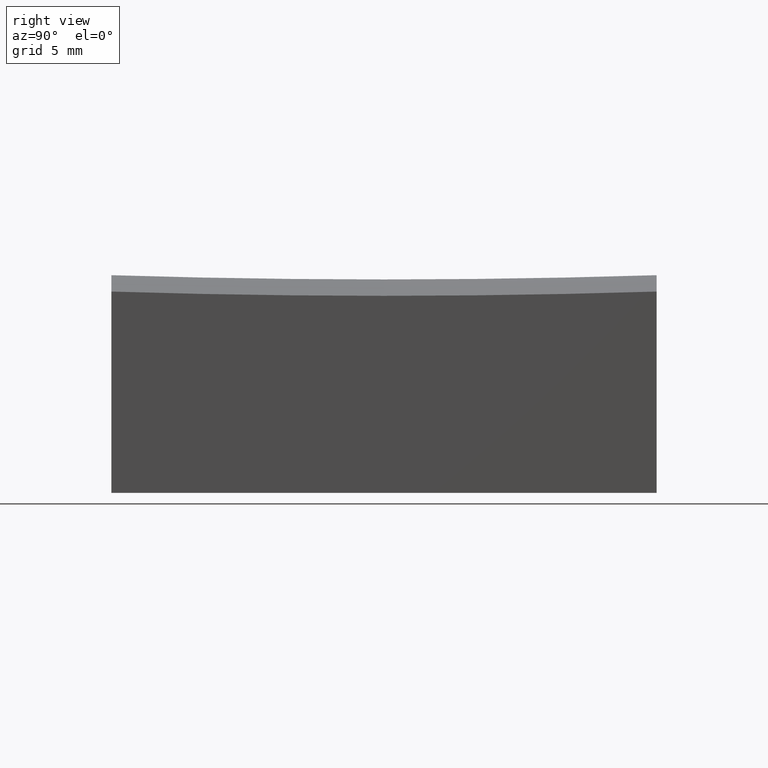
[diagram: clean part render]
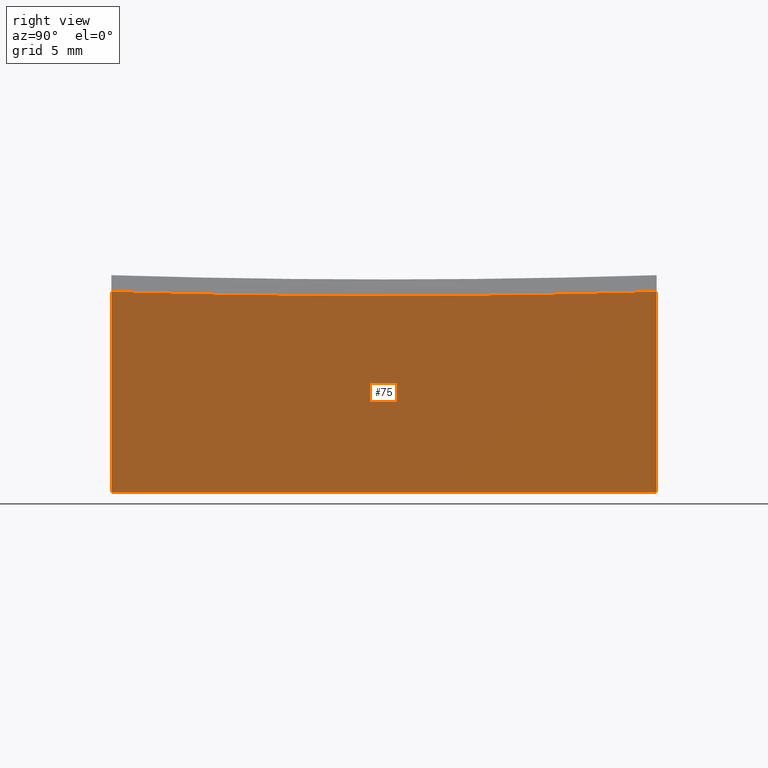
[diagram: same view with one face highlighted and labeled with its STEP entity id]
A machine part, right view. The second image highlights one B-rep face of the part: STEP entity #75.
In plain terms, the highlighted planar face has unit normal (-1, 0, 0).
Its self-contained STEP definition (entity closure, byte-faithful):
#2 = CARTESIAN_POINT ( 'NONE',  ( 10.00000000000000178, 12.50000000000000000, 10.00000000000000000 ) ) ;
#3 = ORIENTED_EDGE ( 'NONE', *, *, #108, .T. ) ;
#7 = AXIS2_PLACEMENT_3D ( 'NONE', #65, #240, #44 ) ;
#12 = CARTESIAN_POINT ( 'NONE',  ( 10.00000000000000178, 12.50000000000000000, -10.00000000000000000 ) ) ;
#17 = FACE_OUTER_BOUND ( 'NONE', #113, .T. ) ;
#18 = DIRECTION ( 'NONE',  ( 0.000000000000000000, 0.000000000000000000, 1.000000000000000000 ) ) ;
#24 = CARTESIAN_POINT ( 'NONE',  ( 10.00000000000000178, 0.000000000000000000, -0.9687487792014171095 ) ) ;
#25 = AXIS2_PLACEMENT_3D ( 'NONE', #235, #36, #66 ) ;
#29 = VECTOR ( 'NONE', #84, 1000.000000000000000 ) ;
#36 = DIRECTION ( 'NONE',  ( -1.000000000000000000, 0.000000000000000000, 0.000000000000000000 ) ) ;
#44 = DIRECTION ( 'NONE',  ( 0.000000000000000000, 0.000000000000000000, 1.000000000000000000 ) ) ;
#48 = VERTEX_POINT ( 'NONE', #196 ) ;
#55 = DIRECTION ( 'NONE',  ( -1.000000000000000000, 0.000000000000000000, 0.000000000000000000 ) ) ;
#60 = LINE ( 'NONE', #2, #29 ) ;
#62 = DIRECTION ( 'NONE',  ( 0.000000000000000000, 1.000000000000000000, 0.000000000000000000 ) ) ;
#65 = CARTESIAN_POINT ( 'NONE',  ( 10.00000000000000178, 0.000000000000000000, 399.0000000000000000 ) ) ;
#66 = DIRECTION ( 'NONE',  ( 0.000000000000000000, 0.000000000000000000, 1.000000000000000000 ) ) ;
#72 = CIRCLE ( 'NONE', #7, 399.9687487792014053 ) ;
#74 = EDGE_CURVE ( 'NONE', #48, #194, #72, .T. ) ;
#75 = ADVANCED_FACE ( 'NONE', ( #17 ), #261, .F. ) ;
#77 = CARTESIAN_POINT ( 'NONE',  ( 10.00000000000000178, 0.000000000000000000, 399.0000000000000000 ) ) ;
#82 = CARTESIAN_POINT ( 'NONE',  ( 10.00000000000000178, -12.50000000000000000, -0.7733733004237630659 ) ) ;
#83 = DIRECTION ( 'NONE',  ( -0.000000000000000000, -0.000000000000000000, -1.000000000000000000 ) ) ;
#84 = DIRECTION ( 'NONE',  ( -0.000000000000000000, -0.000000000000000000, -1.000000000000000000 ) ) ;
#89 = ORIENTED_EDGE ( 'NONE', *, *, #267, .T. ) ;
#95 = AXIS2_PLACEMENT_3D ( 'NONE', #77, #55, #18 ) ;
#98 = EDGE_CURVE ( 'NONE', #48, #243, #60, .T. ) ;
#101 = ORIENTED_EDGE ( 'NONE', *, *, #74, .T. ) ;
#104 = CARTESIAN_POINT ( 'NONE',  ( 10.00000000000000178, -12.50000000000000000, -10.00000000000000000 ) ) ;
#108 = EDGE_CURVE ( 'NONE', #195, #243, #122, .T. ) ;
#113 = EDGE_LOOP ( 'NONE', ( #151, #101, #89, #168, #3 ) ) ;
#114 = VECTOR ( 'NONE', #83, 1000.000000000000000 ) ;
#116 = LINE ( 'NONE', #210, #114 ) ;
#122 = LINE ( 'NONE', #252, #208 ) ;
#126 = VERTEX_POINT ( 'NONE', #82 ) ;
#151 = ORIENTED_EDGE ( 'NONE', *, *, #98, .F. ) ;
#168 = ORIENTED_EDGE ( 'NONE', *, *, #259, .T. ) ;
#194 = VERTEX_POINT ( 'NONE', #24 ) ;
#195 = VERTEX_POINT ( 'NONE', #104 ) ;
#196 = CARTESIAN_POINT ( 'NONE',  ( 10.00000000000000178, 12.50000000000000000, -0.7733733004237630659 ) ) ;
#197 = CIRCLE ( 'NONE', #95, 399.9687487792014053 ) ;
#208 = VECTOR ( 'NONE', #62, 1000.000000000000000 ) ;
#210 = CARTESIAN_POINT ( 'NONE',  ( 10.00000000000000178, -12.50000000000000000, 10.00000000000000000 ) ) ;
#235 = CARTESIAN_POINT ( 'NONE',  ( 10.00000000000000178, -12.50000000000000000, 10.00000000000000000 ) ) ;
#240 = DIRECTION ( 'NONE',  ( -1.000000000000000000, 0.000000000000000000, 0.000000000000000000 ) ) ;
#243 = VERTEX_POINT ( 'NONE', #12 ) ;
#252 = CARTESIAN_POINT ( 'NONE',  ( 10.00000000000000178, -12.50000000000000000, -10.00000000000000000 ) ) ;
#259 = EDGE_CURVE ( 'NONE', #126, #195, #116, .T. ) ;
#261 = PLANE ( 'NONE',  #25 ) ;
#267 = EDGE_CURVE ( 'NONE', #194, #126, #197, .T. ) ;